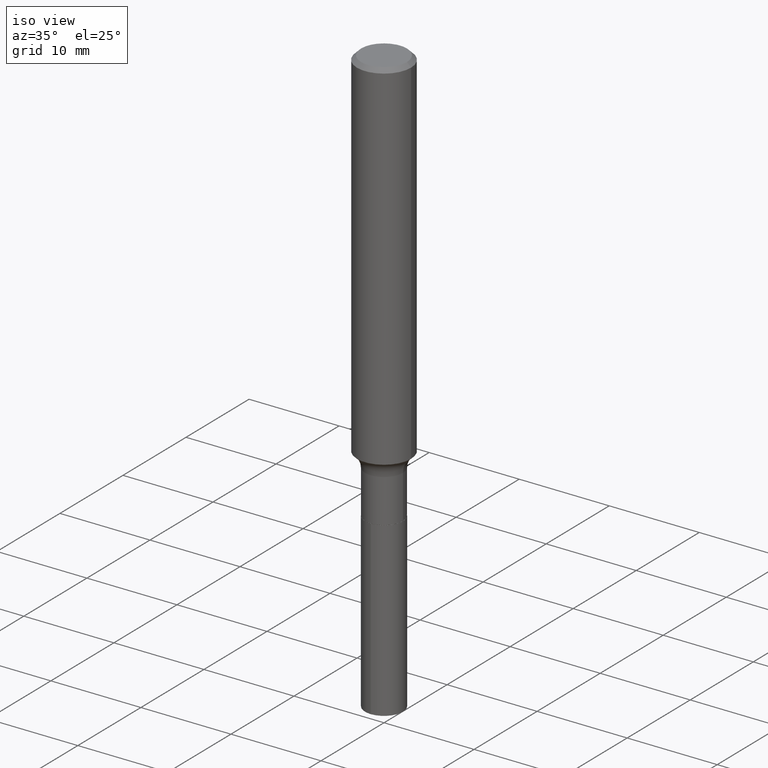
[diagram: clean part render]
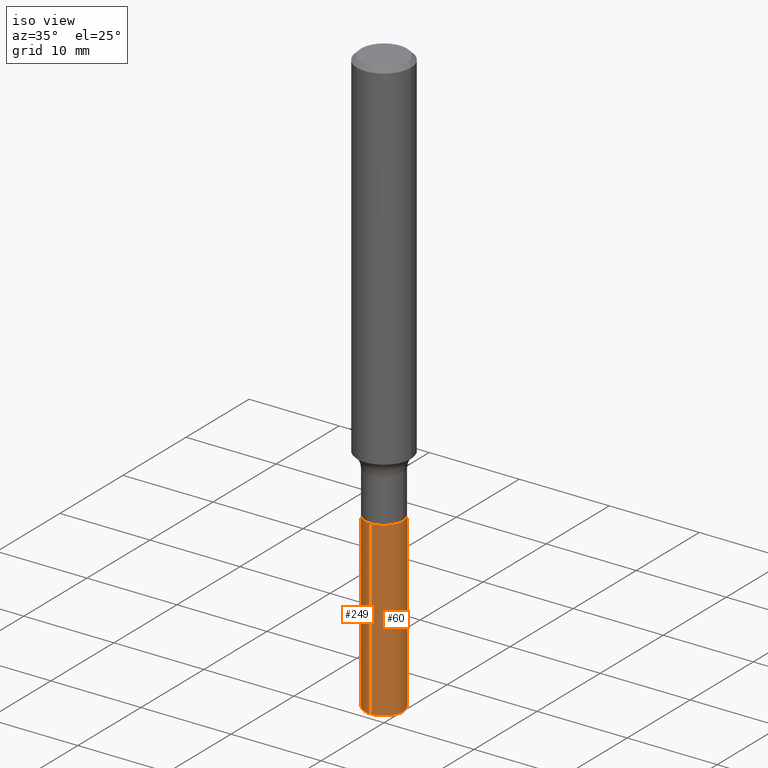
[diagram: same view with one multi-face feature highlighted, each face labeled with its STEP entity id]
A machine part, iso view. The highlighted faces form ONE feature: a constant-radius fillet chain: 2 tangent blend faces with common blend radius 2.1006 mm. The faces share edges in the B-rep.
Their STEP definitions:
[1] entity #60 (Cylinder):
#4 = VECTOR ( 'NONE', #196, 39.37007874015748143 ) ;
#35 = DIRECTION ( 'NONE',  ( -2.445694367474443038E-29, 3.491158322238707200E-15, 1.000000000000000000 ) ) ;
#42 = ORIENTED_EDGE ( 'NONE', *, *, #404, .F. ) ;
#44 = CARTESIAN_POINT ( 'NONE',  ( -5.774910134446096161E-16, -0.08270000000000635176, -1.818899999999999517 ) ) ;
#60 = ADVANCED_FACE ( 'NONE', ( #236 ), #177, .T. ) ;
#63 = CARTESIAN_POINT ( 'NONE',  ( -5.774910134445912751E-16, -0.08270000000000897467, -2.572324790159707053 ) ) ;
#66 = CIRCLE ( 'NONE', #188, 0.08269999999999999574 ) ;
#72 = AXIS2_PLACEMENT_3D ( 'NONE', #79, #284, #272 ) ;
#79 = CARTESIAN_POINT ( 'NONE',  ( 6.290709977179356709E-29, -8.980980633568813177E-15, -2.572324790159707497 ) ) ;
#105 = DIRECTION ( 'NONE',  ( -2.445694367474443318E-29, 3.491158322238707200E-15, 1.000000000000000000 ) ) ;
#111 = VERTEX_POINT ( 'NONE', #63 ) ;
#132 = VECTOR ( 'NONE', #35, 39.37007874015748143 ) ;
#164 = ORIENTED_EDGE ( 'NONE', *, *, #225, .T. ) ;
#177 = CYLINDRICAL_SURFACE ( 'NONE', #326, 0.08269999999999999574 ) ;
#188 = AXIS2_PLACEMENT_3D ( 'NONE', #454, #266, #338 ) ;
#196 = DIRECTION ( 'NONE',  ( -2.445694367474443038E-29, 3.491158322238707200E-15, 1.000000000000000000 ) ) ;
#199 = CARTESIAN_POINT ( 'NONE',  ( -5.774910134446096161E-16, -0.08270000000000635176, -1.818899999999999517 ) ) ;
#203 = CARTESIAN_POINT ( 'NONE',  ( 5.876188424736471968E-16, 0.08269999999999365359, -1.818900000000000183 ) ) ;
#220 = ORIENTED_EDGE ( 'NONE', *, *, #451, .T. ) ;
#223 = CARTESIAN_POINT ( 'NONE',  ( 5.876188424736658337E-16, 0.08269999999999365359, -1.818900000000000183 ) ) ;
#225 = EDGE_CURVE ( 'NONE', #111, #359, #381, .T. ) ;
#236 = FACE_OUTER_BOUND ( 'NONE', #248, .T. ) ;
#248 = EDGE_LOOP ( 'NONE', ( #164, #220, #42, #398 ) ) ;
#266 = DIRECTION ( 'NONE',  ( -2.445694367474443318E-29, 3.491158322238707200E-15, 1.000000000000000000 ) ) ;
#272 = DIRECTION ( 'NONE',  ( -6.982962677686265922E-15, -1.000000000000000000, 6.606645692053841341E-15 ) ) ;
#284 = DIRECTION ( 'NONE',  ( -2.445694367474443318E-29, 3.491158322238707200E-15, 1.000000000000000000 ) ) ;
#295 = CARTESIAN_POINT ( 'NONE',  ( 4.448063211570144353E-29, -6.350655407221796540E-15, -1.818899999999999739 ) ) ;
#308 = EDGE_CURVE ( 'NONE', #111, #375, #430, .T. ) ;
#326 = AXIS2_PLACEMENT_3D ( 'NONE', #295, #105, #400 ) ;
#338 = DIRECTION ( 'NONE',  ( -6.982962677686265922E-15, -1.000000000000000000, 3.303322846026920670E-15 ) ) ;
#348 = VERTEX_POINT ( 'NONE', #223 ) ;
#359 = VERTEX_POINT ( 'NONE', #387 ) ;
#375 = VERTEX_POINT ( 'NONE', #199 ) ;
#381 = CIRCLE ( 'NONE', #72, 0.08269999999999999574 ) ;
#387 = CARTESIAN_POINT ( 'NONE',  ( 5.876188424736658337E-16, 0.08269999999999103069, -2.572324790159708385 ) ) ;
#398 = ORIENTED_EDGE ( 'NONE', *, *, #308, .F. ) ;
#400 = DIRECTION ( 'NONE',  ( -6.982962677686265922E-15, -1.000000000000000000, 3.303322846026920670E-15 ) ) ;
#404 = EDGE_CURVE ( 'NONE', #375, #348, #66, .T. ) ;
#425 = LINE ( 'NONE', #203, #132 ) ;
#430 = LINE ( 'NONE', #44, #4 ) ;
#451 = EDGE_CURVE ( 'NONE', #359, #348, #425, .T. ) ;
#454 = CARTESIAN_POINT ( 'NONE',  ( 4.448063211570144353E-29, -6.350655407221796540E-15, -1.818899999999999739 ) ) ;
[2] entity #249 (Cylinder):
#4 = VECTOR ( 'NONE', #196, 39.37007874015748143 ) ;
#7 = ORIENTED_EDGE ( 'NONE', *, *, #451, .F. ) ;
#19 = FACE_OUTER_BOUND ( 'NONE', #279, .T. ) ;
#29 = CARTESIAN_POINT ( 'NONE',  ( 6.290709977179356709E-29, -8.980980633568813177E-15, -2.572324790159707497 ) ) ;
#35 = DIRECTION ( 'NONE',  ( -2.445694367474443038E-29, 3.491158322238707200E-15, 1.000000000000000000 ) ) ;
#43 = CARTESIAN_POINT ( 'NONE',  ( 4.448063211570144353E-29, -6.350655407221796540E-15, -1.818899999999999739 ) ) ;
#44 = CARTESIAN_POINT ( 'NONE',  ( -5.774910134446096161E-16, -0.08270000000000635176, -1.818899999999999517 ) ) ;
#63 = CARTESIAN_POINT ( 'NONE',  ( -5.774910134445912751E-16, -0.08270000000000897467, -2.572324790159707053 ) ) ;
#84 = CARTESIAN_POINT ( 'NONE',  ( 4.448063211570144353E-29, -6.350655407221796540E-15, -1.818899999999999739 ) ) ;
#87 = AXIS2_PLACEMENT_3D ( 'NONE', #43, #117, #469 ) ;
#111 = VERTEX_POINT ( 'NONE', #63 ) ;
#117 = DIRECTION ( 'NONE',  ( -2.445694367474443318E-29, 3.491158322238707200E-15, 1.000000000000000000 ) ) ;
#132 = VECTOR ( 'NONE', #35, 39.37007874015748143 ) ;
#138 = DIRECTION ( 'NONE',  ( -2.445694367474443318E-29, 3.491158322238707200E-15, 1.000000000000000000 ) ) ;
#161 = ORIENTED_EDGE ( 'NONE', *, *, #486, .F. ) ;
#165 = CIRCLE ( 'NONE', #423, 0.08269999999999999574 ) ;
#166 = ORIENTED_EDGE ( 'NONE', *, *, #308, .T. ) ;
#194 = DIRECTION ( 'NONE',  ( -6.982962677686265922E-15, -1.000000000000000000, 3.303322846026920670E-15 ) ) ;
#196 = DIRECTION ( 'NONE',  ( -2.445694367474443038E-29, 3.491158322238707200E-15, 1.000000000000000000 ) ) ;
#197 = EDGE_CURVE ( 'NONE', #359, #111, #165, .T. ) ;
#199 = CARTESIAN_POINT ( 'NONE',  ( -5.774910134446096161E-16, -0.08270000000000635176, -1.818899999999999517 ) ) ;
#203 = CARTESIAN_POINT ( 'NONE',  ( 5.876188424736471968E-16, 0.08269999999999365359, -1.818900000000000183 ) ) ;
#222 = AXIS2_PLACEMENT_3D ( 'NONE', #84, #350, #194 ) ;
#223 = CARTESIAN_POINT ( 'NONE',  ( 5.876188424736658337E-16, 0.08269999999999365359, -1.818900000000000183 ) ) ;
#242 = ORIENTED_EDGE ( 'NONE', *, *, #197, .T. ) ;
#249 = ADVANCED_FACE ( 'NONE', ( #19 ), #382, .T. ) ;
#279 = EDGE_LOOP ( 'NONE', ( #7, #242, #166, #161 ) ) ;
#289 = DIRECTION ( 'NONE',  ( -6.982962677686265922E-15, -1.000000000000000000, 6.606645692053841341E-15 ) ) ;
#308 = EDGE_CURVE ( 'NONE', #111, #375, #430, .T. ) ;
#348 = VERTEX_POINT ( 'NONE', #223 ) ;
#350 = DIRECTION ( 'NONE',  ( -2.445694367474443318E-29, 3.491158322238707200E-15, 1.000000000000000000 ) ) ;
#359 = VERTEX_POINT ( 'NONE', #387 ) ;
#375 = VERTEX_POINT ( 'NONE', #199 ) ;
#382 = CYLINDRICAL_SURFACE ( 'NONE', #87, 0.08269999999999999574 ) ;
#387 = CARTESIAN_POINT ( 'NONE',  ( 5.876188424736658337E-16, 0.08269999999999103069, -2.572324790159708385 ) ) ;
#423 = AXIS2_PLACEMENT_3D ( 'NONE', #29, #138, #289 ) ;
#425 = LINE ( 'NONE', #203, #132 ) ;
#430 = LINE ( 'NONE', #44, #4 ) ;
#440 = CIRCLE ( 'NONE', #222, 0.08269999999999999574 ) ;
#451 = EDGE_CURVE ( 'NONE', #359, #348, #425, .T. ) ;
#469 = DIRECTION ( 'NONE',  ( -6.982962677686265922E-15, -1.000000000000000000, 3.303322846026920670E-15 ) ) ;
#486 = EDGE_CURVE ( 'NONE', #348, #375, #440, .T. ) ;